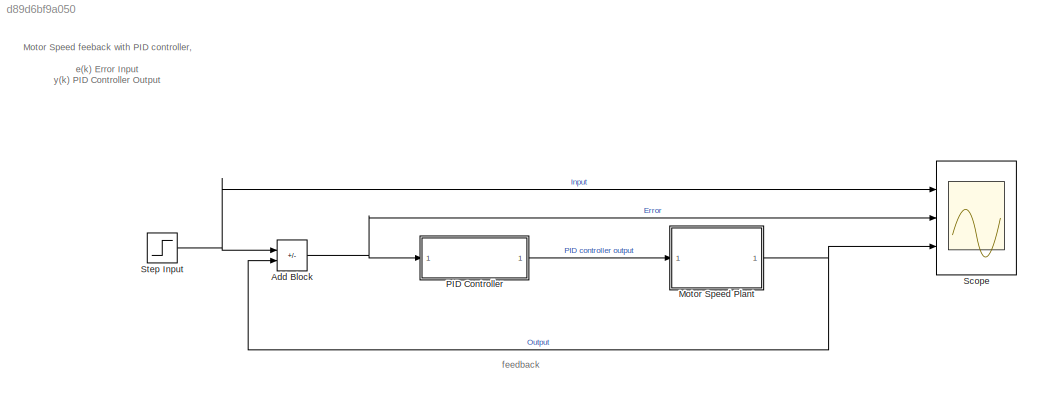
MODEL slx_d89d6bf9a050
KIND model
CONFIG AbsTol = auto
CONFIG EnableMultiTasking = off
CONFIG FixedStep = 0.01
CONFIG MaxStep = auto
CONFIG MinStep = auto
CONFIG PreLoadFcn = clearvars;\nJ = 0.01;\nb = 0.1;\nK = 0.01;\nR = 1;\nL = 0.5;\nTs = 0.01;\nKp = 210;\nKi = 630;\nKd = 20;
CONFIG RelTol = 1e-3
CONFIG SampleTimeConstraint = Unconstrained
CONFIG SolverName = FixedStepAuto
CONFIG StartTime = 0.0
CONFIG StopTime = 20
BLOCK [Sum] Add Block
  IconShape = rectangular
  Inputs = +-
  Ports = [2, 1]
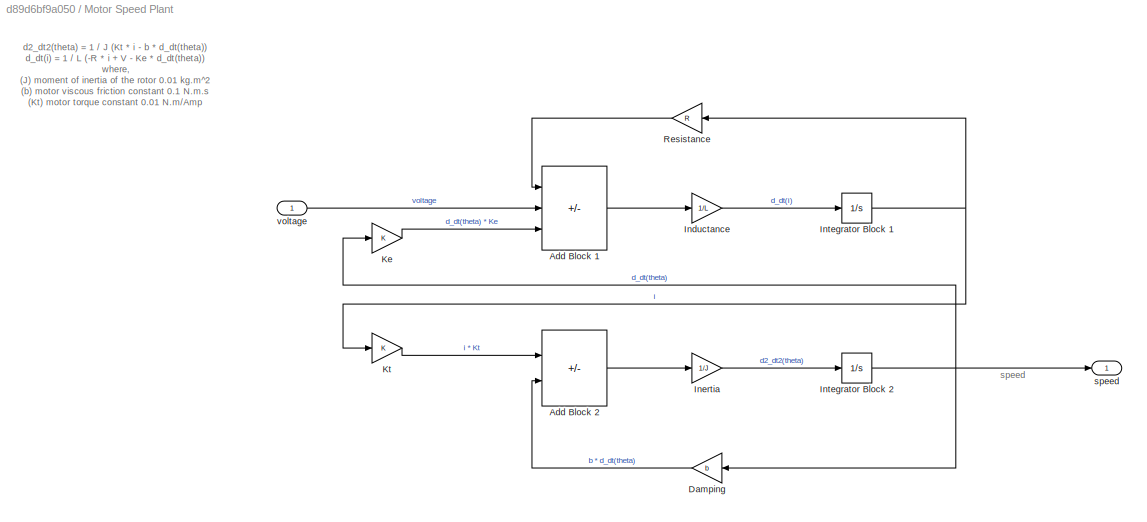
BLOCK [SubSystem] Motor Speed Plant
  Ports = [1, 1]
  RequestExecContextInheritance = off
BLOCK [Sum] Motor Speed Plant/Add Block 1
  IconShape = rectangular
  Inputs = -+-
  Ports = [3, 1]
BLOCK [Sum] Motor Speed Plant/Add Block 2
  IconShape = rectangular
  Inputs = +-
  Ports = [2, 1]
BLOCK [Gain] Motor Speed Plant/Damping
  Gain = b
BLOCK [Gain] Motor Speed Plant/Inductance
  Gain = 1/L
BLOCK [Gain] Motor Speed Plant/Inertia
  Gain = 1/J
BLOCK [Integrator] Motor Speed Plant/Integrator Block 1
  Ports = [1, 1]
BLOCK [Integrator] Motor Speed Plant/Integrator Block 2
  Ports = [1, 1]
BLOCK [Gain] Motor Speed Plant/Ke
  Gain = K
BLOCK [Gain] Motor Speed Plant/Kt
  Gain = K
BLOCK [Gain] Motor Speed Plant/Resistance
  Gain = R
BLOCK [Outport] Motor Speed Plant/speed
BLOCK [Inport] Motor Speed Plant/voltage
BLOCK [ModelReference] PID Controller
  ModelNameDialog = pid_controller.slx
  ModelReferenceVersion = 1.85
  Ports = [1, 1]
BLOCK [Scope] Scope 
  Floating = off
  NumInputPorts = 3
  Ports = [3]
  ScopeSpecificationString = Simulink.scopes.TimeScopeBlockCfg('CurrentConfiguration', extmgr.ConfigurationSet(extmgr.Configuration('Core','General UI',true),extmgr.Configuration('Core','Source UI',true),extmgr.Configuration('Sources','WiredSimulink',true),extmgr.Configuration('Visuals','Time Domain',true,'SerializedDisplays',{struct('MinYLimReal','-14.72978','MaxYLimReal','112.74775','YLabelReal','','MinYLimMag','0.00000','M...<+2773ch>
BLOCK [Step] Step Input
  After = 100
  SampleTime = 0
ANNOTATION (root): Motor Speed feeback with PID controller, e(k) Error Input y(k) PID Controller Output
ANNOTATION (root): feedback
ANNOTATION Motor Speed Plant: d2_dt2(theta) = 1 / J (Kt * i - b * d_dt(theta)) d_dt(i) = 1 / L (-R * i + V - Ke * d_dt(theta)) where, (J) moment of inertia of the rotor 0.01 kg.m^2 (b) motor viscous friction constant 0.1 N.m.s (Kt) motor torque constant 0.01 N.m/Amp (R) electric resistance 1 Ohm (L) electric inductance 0.5 H (Ke) electromotive force constant 0.01 V/rad/sec
ANNOTATION Motor Speed Plant: speed
NET Add Block:1 -> PID Controller:1, Scope :2
LINE Motor Speed Plant/Add Block 1:1 -> Motor Speed Plant/Inductance:1
LINE Motor Speed Plant/Add Block 2:1 -> Motor Speed Plant/Inertia:1
LINE Motor Speed Plant/Damping:1 -> Motor Speed Plant/Add Block 2:2
LINE Motor Speed Plant/Inductance:1 -> Motor Speed Plant/Integrator Block 1:1
LINE Motor Speed Plant/Inertia:1 -> Motor Speed Plant/Integrator Block 2:1
NET Motor Speed Plant/Integrator Block 1:1 -> Motor Speed Plant/Kt:1, Motor Speed Plant/Resistance:1
NET Motor Speed Plant/Integrator Block 2:1 -> Motor Speed Plant/Damping:1, Motor Speed Plant/Ke:1, Motor Speed Plant/speed:1
LINE Motor Speed Plant/Ke:1 -> Motor Speed Plant/Add Block 1:3
LINE Motor Speed Plant/Kt:1 -> Motor Speed Plant/Add Block 2:1
LINE Motor Speed Plant/Resistance:1 -> Motor Speed Plant/Add Block 1:1
LINE Motor Speed Plant/voltage:1 -> Motor Speed Plant/Add Block 1:2
NET Motor Speed Plant:1 -> Add Block:2, Scope :3
LINE PID Controller:1 -> Motor Speed Plant:1
NET Step Input:1 -> Add Block:1, Scope :1
note: NET lines group one-source signal fan-out (src -> all destinations, sorted); 1:1 wires keep LINE
